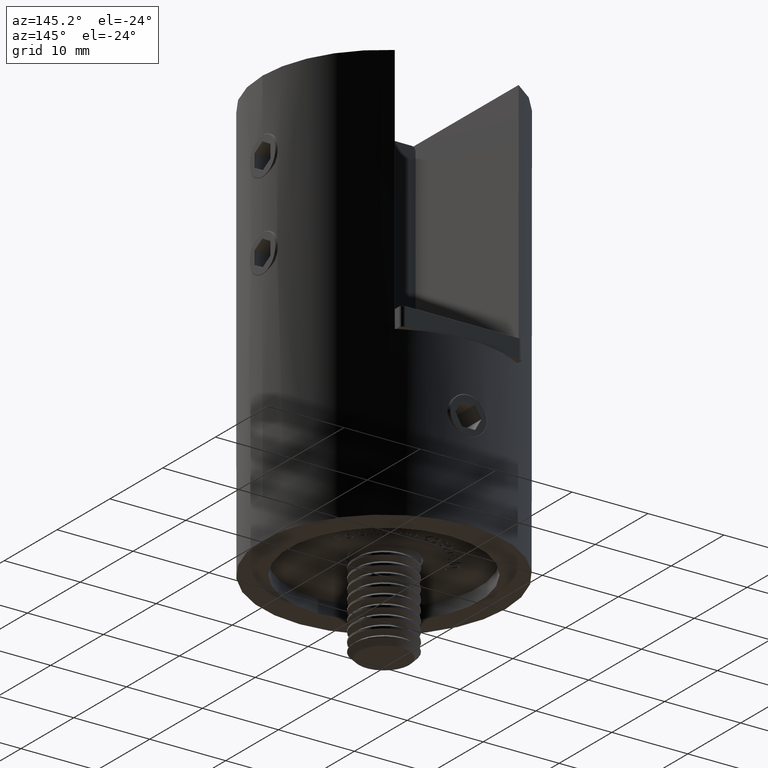
[diagram: clean part render]
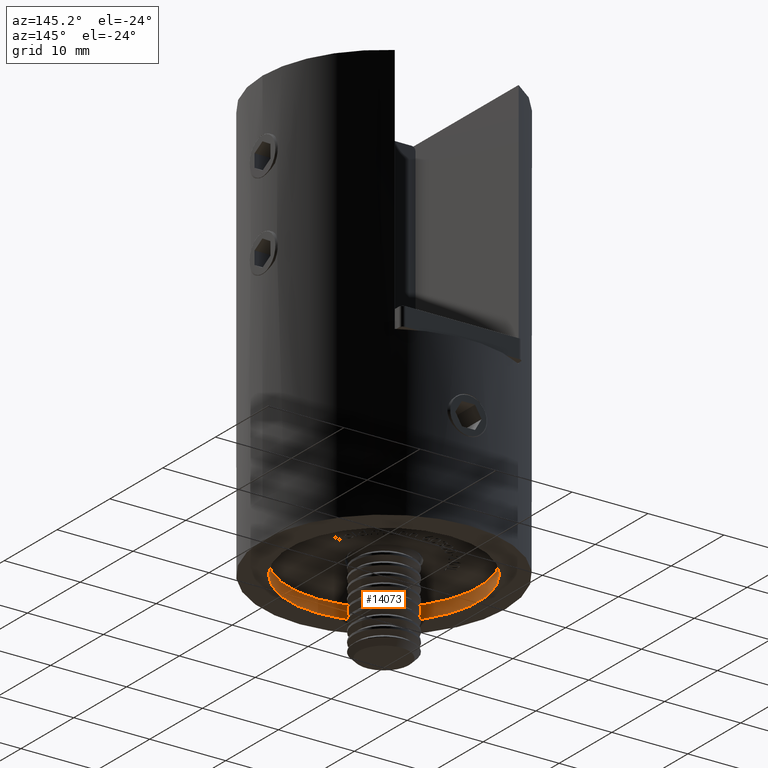
[diagram: same view with one face highlighted and labeled with its STEP entity id]
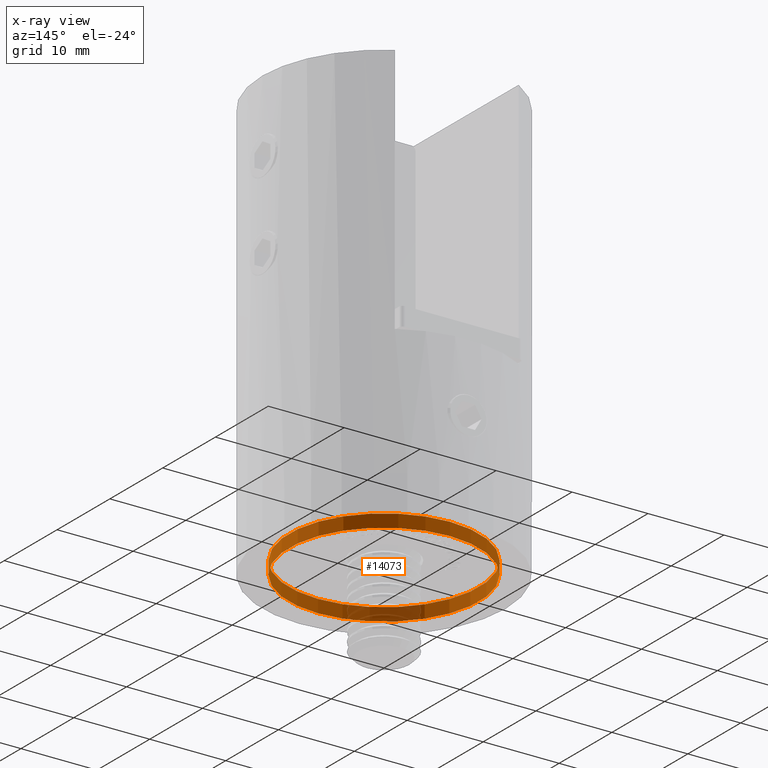
[diagram: x-ray of the same camera — body ghosted, the highlighted face saturated]
A machine part, auxiliary view. The second image highlights one B-rep face of the part: STEP entity #14073.
The next image is the same camera in x-ray: the body ghosted, the highlighted face saturated — about 16% of this face is hidden behind the body in this view.
In plain terms, the highlighted cylindrical surface (bore or boss wall) has radius 12.5 mm, axis along (0, -0, -1).
Its self-contained STEP definition (entity closure, byte-faithful):
#384 = EDGE_LOOP ( 'NONE', ( #12049 ) ) ;
#1210 = AXIS2_PLACEMENT_3D ( 'NONE', #10358, #5396, #18074 ) ;
#1765 = VERTEX_POINT ( 'NONE', #8343 ) ;
#2115 = AXIS2_PLACEMENT_3D ( 'NONE', #19732, #19675, #8874 ) ;
#2803 = ORIENTED_EDGE ( 'NONE', *, *, #19996, .T. ) ;
#3242 = VERTEX_POINT ( 'NONE', #18252 ) ;
#3716 = CARTESIAN_POINT ( 'NONE',  ( 0.000000000000000000, 0.000000000000000000, 0.000000000000000000 ) ) ;
#4215 = EDGE_LOOP ( 'NONE', ( #2803 ) ) ;
#5396 = DIRECTION ( 'NONE',  ( -0.000000000000000000, -1.000000000000000000, -0.000000000000000000 ) ) ;
#5585 = CYLINDRICAL_SURFACE ( 'NONE', #1210, 12.50000000000000000 ) ;
#6975 = CIRCLE ( 'NONE', #2115, 12.50000000000000000 ) ;
#8148 = AXIS2_PLACEMENT_3D ( 'NONE', #3716, #11645, #17944 ) ;
#8343 = CARTESIAN_POINT ( 'NONE',  ( 0.000000000000000000, 1.699999999999999956, -12.50000000000000000 ) ) ;
#8874 = DIRECTION ( 'NONE',  ( 0.000000000000000000, 0.000000000000000000, -1.000000000000000000 ) ) ;
#8967 = CIRCLE ( 'NONE', #8148, 12.50000000000000000 ) ;
#9046 = EDGE_CURVE ( 'NONE', #1765, #1765, #6975, .T. ) ;
#10358 = CARTESIAN_POINT ( 'NONE',  ( 0.000000000000000000, 1.699999999999999956, 0.000000000000000000 ) ) ;
#11645 = DIRECTION ( 'NONE',  ( 0.000000000000000000, -1.000000000000000000, 0.000000000000000000 ) ) ;
#12049 = ORIENTED_EDGE ( 'NONE', *, *, #9046, .F. ) ;
#13950 = FACE_OUTER_BOUND ( 'NONE', #384, .T. ) ;
#14073 = ADVANCED_FACE ( 'NONE', ( #13950, #19130 ), #5585, .F. ) ;
#17944 = DIRECTION ( 'NONE',  ( 0.000000000000000000, 0.000000000000000000, -1.000000000000000000 ) ) ;
#18074 = DIRECTION ( 'NONE',  ( 0.000000000000000000, 0.000000000000000000, -1.000000000000000000 ) ) ;
#18252 = CARTESIAN_POINT ( 'NONE',  ( 0.000000000000000000, 0.000000000000000000, -12.50000000000000000 ) ) ;
#19130 = FACE_OUTER_BOUND ( 'NONE', #4215, .T. ) ;
#19675 = DIRECTION ( 'NONE',  ( 0.000000000000000000, -1.000000000000000000, 0.000000000000000000 ) ) ;
#19732 = CARTESIAN_POINT ( 'NONE',  ( 0.000000000000000000, 1.699999999999999956, 0.000000000000000000 ) ) ;
#19996 = EDGE_CURVE ( 'NONE', #3242, #3242, #8967, .T. ) ;